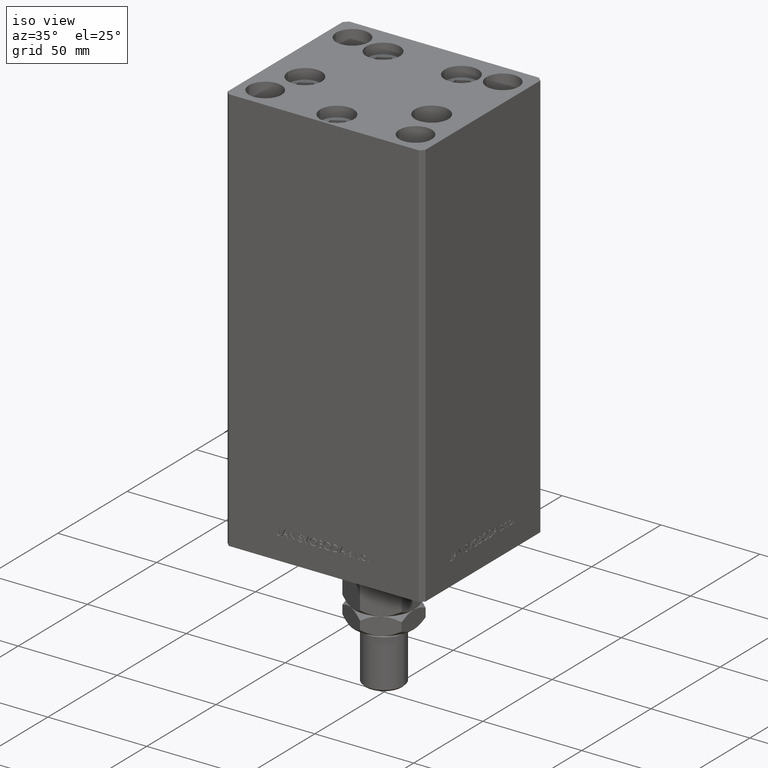
[diagram: clean part render]
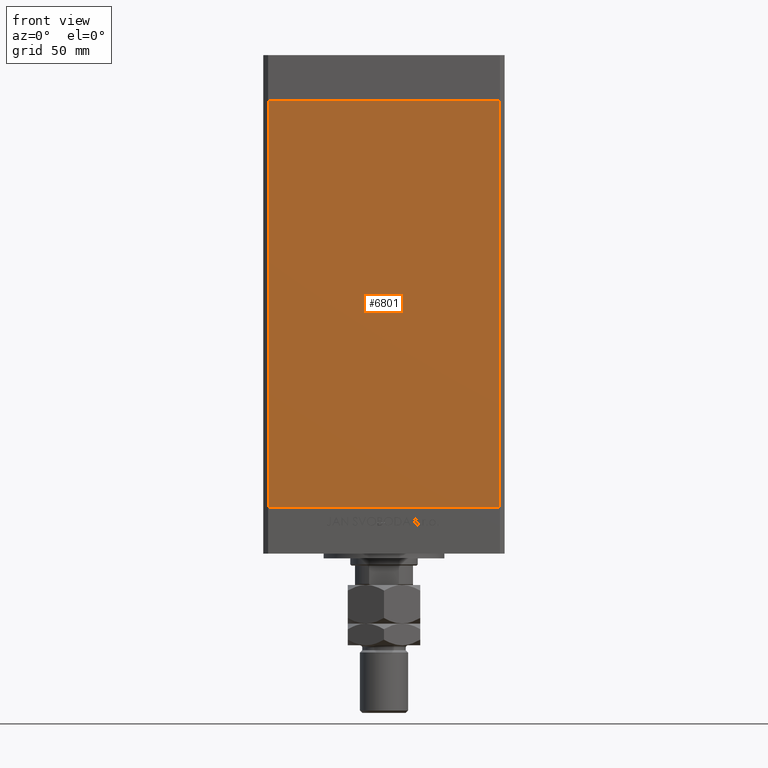
[diagram: tour spotlight — one face highlighted and labeled with its STEP entity id]
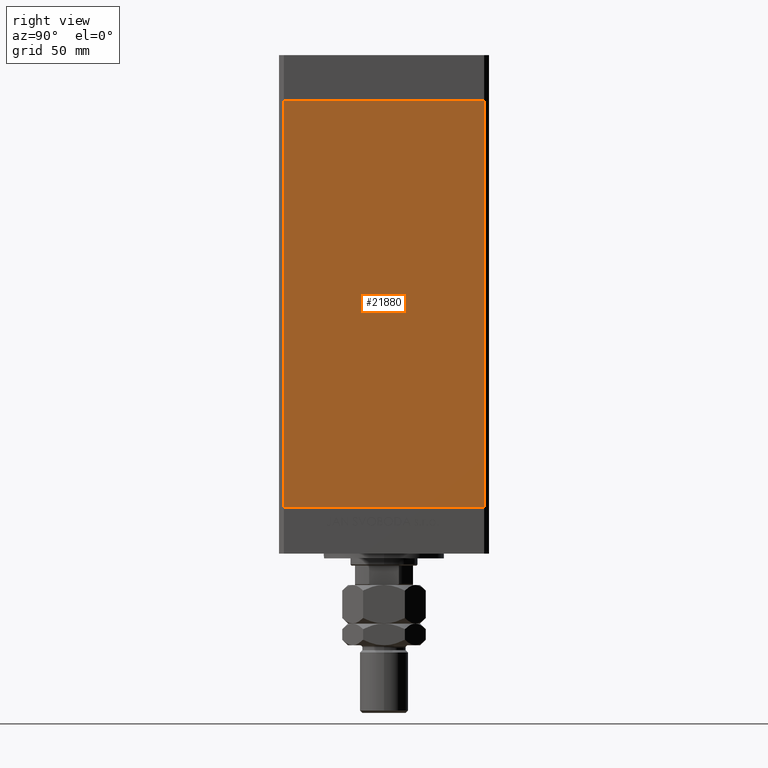
[diagram: tour spotlight — one face highlighted and labeled with its STEP entity id]
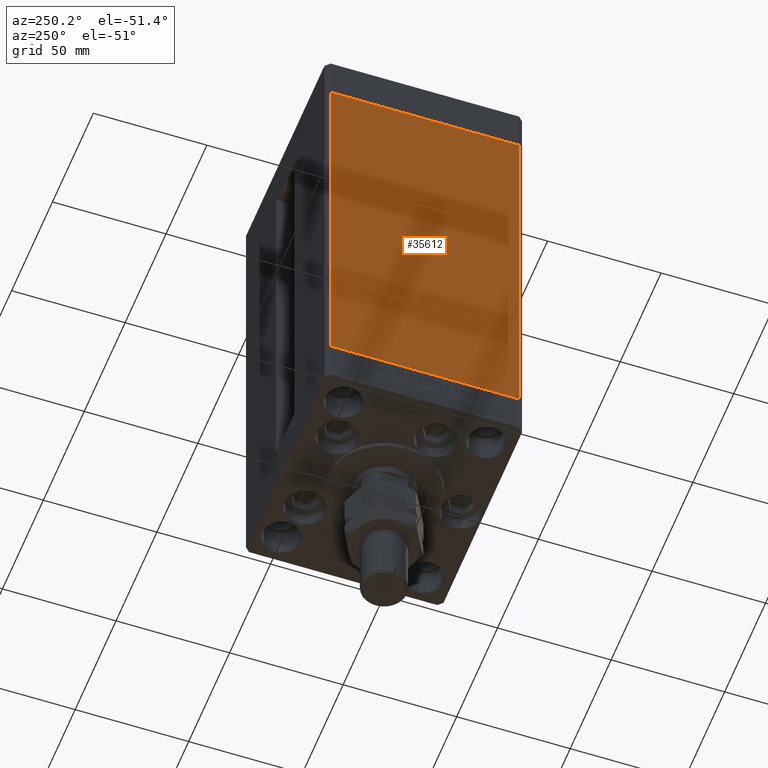
[diagram: tour spotlight — one face highlighted and labeled with its STEP entity id]
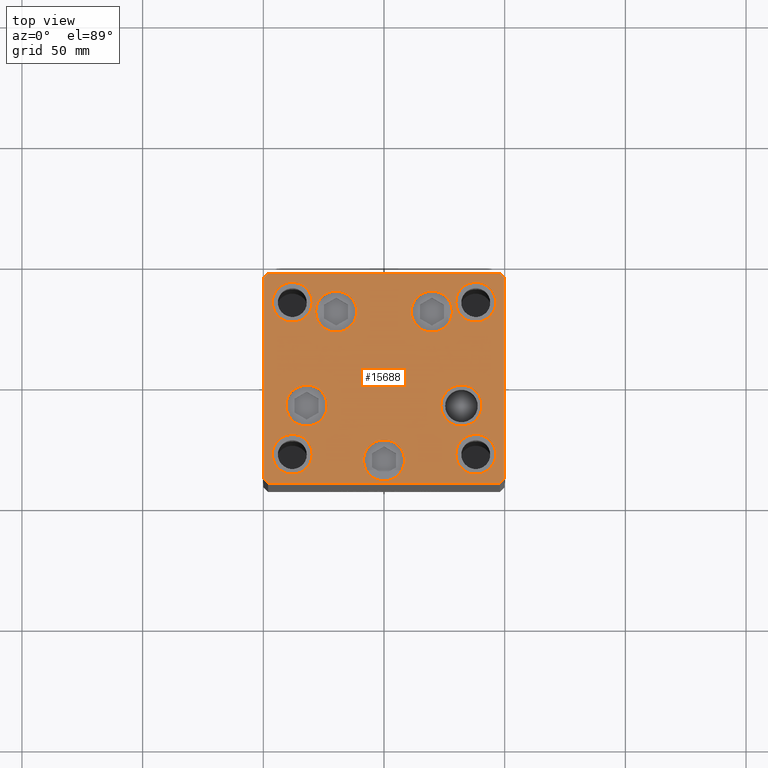
[diagram: tour spotlight — one face highlighted and labeled with its STEP entity id]
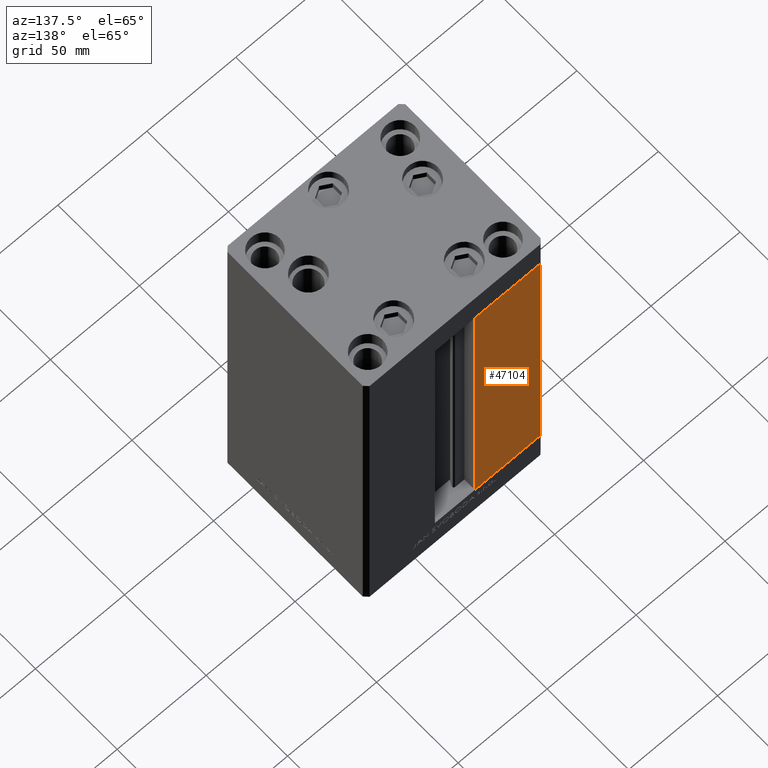
[diagram: tour spotlight — one face highlighted and labeled with its STEP entity id]
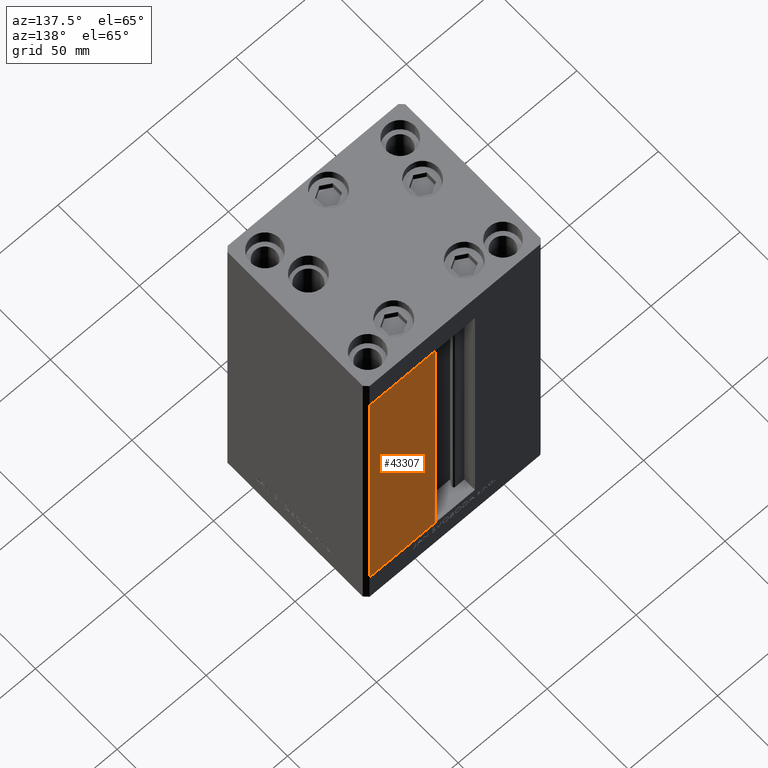
[diagram: tour spotlight — one face highlighted and labeled with its STEP entity id]
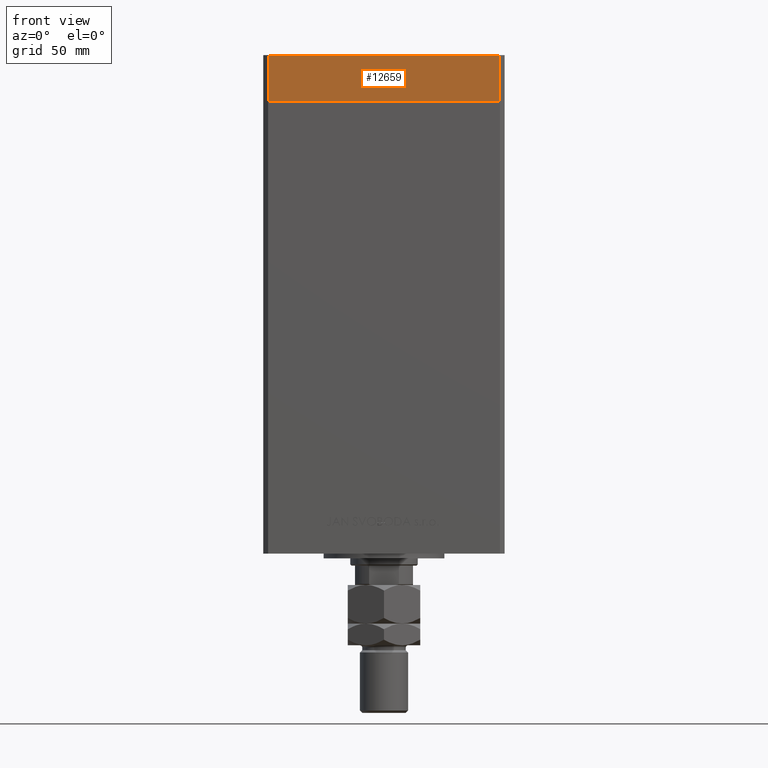
[diagram: tour spotlight — one face highlighted and labeled with its STEP entity id]
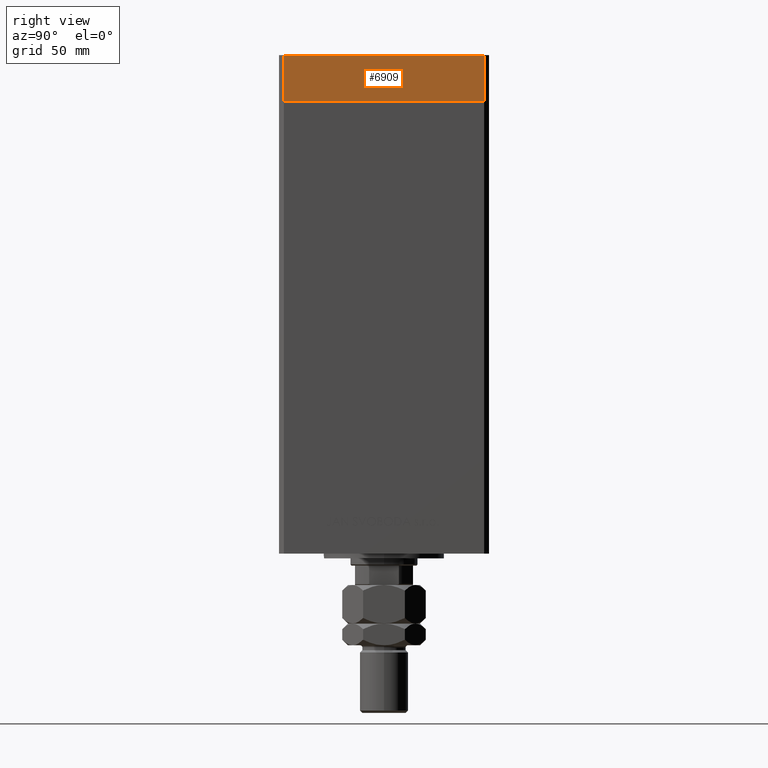
[diagram: tour spotlight — one face highlighted and labeled with its STEP entity id]
A machine part: a face-by-face anatomy tour. The part has 1213 B-rep faces; the first image is the clean iso view, then the 8 largest visible faces are spotlighted one at a time (largest first), each with its STEP entity span.

Face 1 — front view, entity #6801. In plain terms, the highlighted planar face has unit normal (0, 1, 0).
Definition (entity closure, byte-faithful):
#529 = DIRECTION ( 'NONE',  ( -0.000000000000000000, -0.000000000000000000, -1.000000000000000000 ) ) ;
#2316 = VERTEX_POINT ( 'NONE', #23486 ) ;
#3650 = CARTESIAN_POINT ( 'NONE',  ( 47.99999999999998579, -43.50000000000000000, 168.5000000000000000 ) ) ;
#5937 = VECTOR ( 'NONE', #37376, 1000.000000000000000 ) ;
#6801 = ADVANCED_FACE ( 'NONE', ( #41312 ), #50525, .F. ) ;
#7800 = CARTESIAN_POINT ( 'NONE',  ( -47.99999999999998579, -43.50000000000000000, 168.5000000000000000 ) ) ;
#8422 = VERTEX_POINT ( 'NONE', #33880 ) ;
#11172 = VECTOR ( 'NONE', #31427, 1000.000000000000000 ) ;
#12581 = CARTESIAN_POINT ( 'NONE',  ( 47.99999999999998579, -43.50000000000000000, 0.000000000000000000 ) ) ;
#17658 = EDGE_CURVE ( 'NONE', #35842, #23782, #31347, .T. ) ;
#21240 = EDGE_LOOP ( 'NONE', ( #45134, #36177, #46824, #46630 ) ) ;
#22065 = AXIS2_PLACEMENT_3D ( 'NONE', #35112, #30535, #31018 ) ;
#23486 = CARTESIAN_POINT ( 'NONE',  ( -47.99999999999998579, -43.50000000000000000, 168.5000000000000000 ) ) ;
#23782 = VERTEX_POINT ( 'NONE', #12581 ) ;
#24847 = CARTESIAN_POINT ( 'NONE',  ( -47.99999999999998579, -43.50000000000000000, 168.5000000000000000 ) ) ;
#27083 = LINE ( 'NONE', #7800, #11172 ) ;
#30535 = DIRECTION ( 'NONE',  ( 0.000000000000000000, 1.000000000000000000, 0.000000000000000000 ) ) ;
#30543 = VECTOR ( 'NONE', #529, 1000.000000000000000 ) ;
#30609 = LINE ( 'NONE', #46265, #45427 ) ;
#31018 = DIRECTION ( 'NONE',  ( 0.000000000000000000, -0.000000000000000000, 1.000000000000000000 ) ) ;
#31347 = LINE ( 'NONE', #35192, #30543 ) ;
#31427 = DIRECTION ( 'NONE',  ( 1.000000000000000000, 0.000000000000000000, 0.000000000000000000 ) ) ;
#33880 = CARTESIAN_POINT ( 'NONE',  ( -47.99999999999998579, -43.50000000000000000, 0.000000000000000000 ) ) ;
#35112 = CARTESIAN_POINT ( 'NONE',  ( -47.99999999999998579, -43.50000000000000000, 168.5000000000000000 ) ) ;
#35192 = CARTESIAN_POINT ( 'NONE',  ( 47.99999999999998579, -43.50000000000000000, 168.5000000000000000 ) ) ;
#35842 = VERTEX_POINT ( 'NONE', #3650 ) ;
#36177 = ORIENTED_EDGE ( 'NONE', *, *, #17658, .F. ) ;
#37376 = DIRECTION ( 'NONE',  ( -0.000000000000000000, -0.000000000000000000, -1.000000000000000000 ) ) ;
#41245 = LINE ( 'NONE', #24847, #5937 ) ;
#41312 = FACE_OUTER_BOUND ( 'NONE', #21240, .T. ) ;
#42403 = DIRECTION ( 'NONE',  ( 1.000000000000000000, 0.000000000000000000, 0.000000000000000000 ) ) ;
#44222 = EDGE_CURVE ( 'NONE', #8422, #23782, #30609, .T. ) ;
#45134 = ORIENTED_EDGE ( 'NONE', *, *, #44222, .T. ) ;
#45427 = VECTOR ( 'NONE', #42403, 1000.000000000000000 ) ;
#45814 = EDGE_CURVE ( 'NONE', #2316, #35842, #27083, .T. ) ;
#46265 = CARTESIAN_POINT ( 'NONE',  ( -47.99999999999998579, -43.50000000000000000, 0.000000000000000000 ) ) ;
#46630 = ORIENTED_EDGE ( 'NONE', *, *, #50470, .T. ) ;
#46824 = ORIENTED_EDGE ( 'NONE', *, *, #45814, .F. ) ;
#50470 = EDGE_CURVE ( 'NONE', #2316, #8422, #41245, .T. ) ;
#50525 = PLANE ( 'NONE',  #22065 ) ;

Face 2 — right view, entity #21880. In plain terms, the highlighted planar face has unit normal (1, -0, 0).
Definition (entity closure, byte-faithful):
#535 = LINE ( 'NONE', #16963, #19061 ) ;
#977 = DIRECTION ( 'NONE',  ( 3.344045254895050973E-16, 1.000000000000000000, 0.000000000000000000 ) ) ;
#4315 = CARTESIAN_POINT ( 'NONE',  ( 50.00000000000001421, 41.49999999999999289, 168.5000000000000000 ) ) ;
#7964 = DIRECTION ( 'NONE',  ( -0.000000000000000000, -0.000000000000000000, -1.000000000000000000 ) ) ;
#8563 = CARTESIAN_POINT ( 'NONE',  ( 50.00000000000001421, 41.49999999999999289, 0.000000000000000000 ) ) ;
#13656 = CARTESIAN_POINT ( 'NONE',  ( 50.00000000000001421, 41.49999999999999289, 168.5000000000000000 ) ) ;
#13893 = EDGE_CURVE ( 'NONE', #48830, #14490, #48846, .T. ) ;
#14490 = VERTEX_POINT ( 'NONE', #8563 ) ;
#15470 = VERTEX_POINT ( 'NONE', #44717 ) ;
#15500 = ORIENTED_EDGE ( 'NONE', *, *, #35197, .T. ) ;
#16963 = CARTESIAN_POINT ( 'NONE',  ( 50.00000000000001421, 41.49999999999999289, 168.5000000000000000 ) ) ;
#17645 = EDGE_CURVE ( 'NONE', #15470, #29056, #28274, .T. ) ;
#19061 = VECTOR ( 'NONE', #28018, 1000.000000000000000 ) ;
#19067 = VECTOR ( 'NONE', #44990, 1000.000000000000000 ) ;
#19371 = ORIENTED_EDGE ( 'NONE', *, *, #33320, .F. ) ;
#19871 = LINE ( 'NONE', #23469, #27997 ) ;
#20239 = PLANE ( 'NONE',  #42490 ) ;
#21880 = ADVANCED_FACE ( 'NONE', ( #43599 ), #20239, .T. ) ;
#23469 = CARTESIAN_POINT ( 'NONE',  ( 50.00000000000001421, 41.49999999999999289, 0.000000000000000000 ) ) ;
#24825 = ORIENTED_EDGE ( 'NONE', *, *, #17645, .T. ) ;
#26007 = CARTESIAN_POINT ( 'NONE',  ( 49.99999999999998579, -41.49999999999999289, 0.000000000000000000 ) ) ;
#27815 = DIRECTION ( 'NONE',  ( -3.344045254895050973E-16, -1.000000000000000000, 0.000000000000000000 ) ) ;
#27997 = VECTOR ( 'NONE', #27815, 1000.000000000000000 ) ;
#28018 = DIRECTION ( 'NONE',  ( -3.344045254895050973E-16, -1.000000000000000000, 0.000000000000000000 ) ) ;
#28274 = LINE ( 'NONE', #39041, #29714 ) ;
#29056 = VERTEX_POINT ( 'NONE', #26007 ) ;
#29714 = VECTOR ( 'NONE', #7964, 1000.000000000000000 ) ;
#33320 = EDGE_CURVE ( 'NONE', #14490, #29056, #19871, .T. ) ;
#35197 = EDGE_CURVE ( 'NONE', #48830, #15470, #535, .T. ) ;
#35776 = EDGE_LOOP ( 'NONE', ( #19371, #38765, #15500, #24825 ) ) ;
#35891 = DIRECTION ( 'NONE',  ( 1.000000000000000000, -3.344045254895050973E-16, 0.000000000000000000 ) ) ;
#38765 = ORIENTED_EDGE ( 'NONE', *, *, #13893, .F. ) ;
#39041 = CARTESIAN_POINT ( 'NONE',  ( 49.99999999999998579, -41.49999999999999289, 168.5000000000000000 ) ) ;
#42490 = AXIS2_PLACEMENT_3D ( 'NONE', #4315, #35891, #977 ) ;
#43599 = FACE_OUTER_BOUND ( 'NONE', #35776, .T. ) ;
#44717 = CARTESIAN_POINT ( 'NONE',  ( 49.99999999999998579, -41.49999999999999289, 168.5000000000000000 ) ) ;
#44990 = DIRECTION ( 'NONE',  ( -0.000000000000000000, -0.000000000000000000, -1.000000000000000000 ) ) ;
#45534 = CARTESIAN_POINT ( 'NONE',  ( 50.00000000000001421, 41.49999999999999289, 168.5000000000000000 ) ) ;
#48830 = VERTEX_POINT ( 'NONE', #45534 ) ;
#48846 = LINE ( 'NONE', #13656, #19067 ) ;

Face 3 — auxiliary view, entity #35612. In plain terms, the highlighted planar face has unit normal (1, 0, 0).
Definition (entity closure, byte-faithful):
#1394 = LINE ( 'NONE', #20665, #5279 ) ;
#2627 = AXIS2_PLACEMENT_3D ( 'NONE', #16013, #35024, #15764 ) ;
#3228 = VECTOR ( 'NONE', #14682, 1000.000000000000000 ) ;
#4288 = DIRECTION ( 'NONE',  ( -0.000000000000000000, -0.000000000000000000, -1.000000000000000000 ) ) ;
#5279 = VECTOR ( 'NONE', #43250, 1000.000000000000000 ) ;
#7224 = LINE ( 'NONE', #22660, #3228 ) ;
#7308 = ORIENTED_EDGE ( 'NONE', *, *, #40524, .F. ) ;
#10372 = ORIENTED_EDGE ( 'NONE', *, *, #23127, .T. ) ;
#10555 = ORIENTED_EDGE ( 'NONE', *, *, #40869, .T. ) ;
#11958 = VERTEX_POINT ( 'NONE', #22955 ) ;
#14682 = DIRECTION ( 'NONE',  ( 3.344045254895050973E-16, -1.000000000000000000, 0.000000000000000000 ) ) ;
#15764 = DIRECTION ( 'NONE',  ( -3.344045254895050973E-16, 1.000000000000000000, 0.000000000000000000 ) ) ;
#15803 = DIRECTION ( 'NONE',  ( -0.000000000000000000, -0.000000000000000000, -1.000000000000000000 ) ) ;
#16013 = CARTESIAN_POINT ( 'NONE',  ( -50.00000000000001421, 41.49999999999999289, 168.5000000000000000 ) ) ;
#16341 = CARTESIAN_POINT ( 'NONE',  ( -49.99999999999998579, -41.49999999999999289, 168.5000000000000000 ) ) ;
#19132 = FACE_OUTER_BOUND ( 'NONE', #29536, .T. ) ;
#20665 = CARTESIAN_POINT ( 'NONE',  ( -50.00000000000001421, 41.49999999999999289, 0.000000000000000000 ) ) ;
#22660 = CARTESIAN_POINT ( 'NONE',  ( -50.00000000000001421, 41.49999999999999289, 168.5000000000000000 ) ) ;
#22955 = CARTESIAN_POINT ( 'NONE',  ( -50.00000000000001421, 41.49999999999999289, 168.5000000000000000 ) ) ;
#23127 = EDGE_CURVE ( 'NONE', #11958, #43761, #36077, .T. ) ;
#24120 = VECTOR ( 'NONE', #4288, 1000.000000000000000 ) ;
#24295 = CARTESIAN_POINT ( 'NONE',  ( -50.00000000000001421, 41.49999999999999289, 168.5000000000000000 ) ) ;
#24506 = EDGE_CURVE ( 'NONE', #11958, #25823, #7224, .T. ) ;
#25823 = VERTEX_POINT ( 'NONE', #45870 ) ;
#26602 = ORIENTED_EDGE ( 'NONE', *, *, #24506, .F. ) ;
#29536 = EDGE_LOOP ( 'NONE', ( #10555, #7308, #26602, #10372 ) ) ;
#35024 = DIRECTION ( 'NONE',  ( 1.000000000000000000, 3.344045254895050973E-16, -0.000000000000000000 ) ) ;
#35612 = ADVANCED_FACE ( 'NONE', ( #19132 ), #43488, .F. ) ;
#35880 = CARTESIAN_POINT ( 'NONE',  ( -50.00000000000001421, 41.49999999999999289, 0.000000000000000000 ) ) ;
#36077 = LINE ( 'NONE', #24295, #49073 ) ;
#38350 = VERTEX_POINT ( 'NONE', #47474 ) ;
#40524 = EDGE_CURVE ( 'NONE', #25823, #38350, #47940, .T. ) ;
#40869 = EDGE_CURVE ( 'NONE', #43761, #38350, #1394, .T. ) ;
#43250 = DIRECTION ( 'NONE',  ( 3.344045254895050973E-16, -1.000000000000000000, 0.000000000000000000 ) ) ;
#43488 = PLANE ( 'NONE',  #2627 ) ;
#43761 = VERTEX_POINT ( 'NONE', #35880 ) ;
#45870 = CARTESIAN_POINT ( 'NONE',  ( -49.99999999999998579, -41.49999999999999289, 168.5000000000000000 ) ) ;
#47474 = CARTESIAN_POINT ( 'NONE',  ( -49.99999999999998579, -41.49999999999999289, 0.000000000000000000 ) ) ;
#47940 = LINE ( 'NONE', #16341, #24120 ) ;
#49073 = VECTOR ( 'NONE', #15803, 1000.000000000000000 ) ;

Face 4 — top view, entity #15688. In plain terms, the highlighted planar face has unit normal (0, 0, 1).
Definition (entity closure, byte-faithful):
#46 = DIRECTION ( 'NONE',  ( -1.003213576468515193E-15, 1.000000000000000000, 0.000000000000000000 ) ) ;
#69 = EDGE_CURVE ( 'NONE', #17532, #7240, #39985, .T. ) ;
#386 = DIRECTION ( 'NONE',  ( 1.000000000000000000, 0.000000000000000000, 0.000000000000000000 ) ) ;
#493 = DIRECTION ( 'NONE',  ( -0.000000000000000000, 0.000000000000000000, 1.000000000000000000 ) ) ;
#715 = EDGE_CURVE ( 'NONE', #7240, #17532, #22816, .T. ) ;
#754 = FACE_BOUND ( 'NONE', #46035, .T. ) ;
#945 = DIRECTION ( 'NONE',  ( 0.000000000000000000, 0.000000000000000000, 1.000000000000000000 ) ) ;
#1121 = ORIENTED_EDGE ( 'NONE', *, *, #9019, .T. ) ;
#1205 = CARTESIAN_POINT ( 'NONE',  ( 38.00000000000000000, 31.49999999999999289, 0.000000000000000000 ) ) ;
#1265 = FACE_BOUND ( 'NONE', #44246, .T. ) ;
#1752 = AXIS2_PLACEMENT_3D ( 'NONE', #9958, #41297, #6121 ) ;
#1958 = DIRECTION ( 'NONE',  ( 1.000000000000000000, 0.000000000000000000, 0.000000000000000000 ) ) ;
#2048 = CARTESIAN_POINT ( 'NONE',  ( 47.99999999999999289, -43.50000000000001421, 0.000000000000000000 ) ) ;
#2300 = CIRCLE ( 'NONE', #21195, 8.250000000000000000 ) ;
#3061 = VERTEX_POINT ( 'NONE', #20725 ) ;
#3112 = CIRCLE ( 'NONE', #7172, 8.499999999999992895 ) ;
#3163 = DIRECTION ( 'NONE',  ( 0.7071067811865474617, -0.7071067811865474617, 0.000000000000000000 ) ) ;
#3222 = VERTEX_POINT ( 'NONE', #38641 ) ;
#3301 = CIRCLE ( 'NONE', #50823, 8.500000000000000000 ) ;
#3404 = ORIENTED_EDGE ( 'NONE', *, *, #21655, .T. ) ;
#3421 = CARTESIAN_POINT ( 'NONE',  ( -29.74999999999999289, -31.50000000000000000, 0.000000000000000000 ) ) ;
#3546 = CARTESIAN_POINT ( 'NONE',  ( 47.99999999999990763, 43.50000000000000000, 0.000000000000000000 ) ) ;
#3696 = EDGE_LOOP ( 'NONE', ( #37921, #50146 ) ) ;
#3790 = EDGE_CURVE ( 'NONE', #40538, #31033, #3112, .T. ) ;
#4698 = CARTESIAN_POINT ( 'NONE',  ( -37.99999999999999289, -31.50000000000000000, 0.000000000000000000 ) ) ;
#4771 = CARTESIAN_POINT ( 'NONE',  ( -40.55550741379015278, -11.33333333333333925, 0.000000000000000000 ) ) ;
#4801 = VERTEX_POINT ( 'NONE', #20280 ) ;
#4966 = EDGE_CURVE ( 'NONE', #29461, #3061, #2300, .T. ) ;
#5119 = FACE_BOUND ( 'NONE', #25212, .T. ) ;
#5185 = VERTEX_POINT ( 'NONE', #9419 ) ;
#6121 = DIRECTION ( 'NONE',  ( 1.000000000000000000, 0.000000000000000000, 0.000000000000000000 ) ) ;
#6332 = EDGE_CURVE ( 'NONE', #22557, #35600, #15975, .T. ) ;
#6381 = DIRECTION ( 'NONE',  ( 0.000000000000000000, -0.000000000000000000, -1.000000000000000000 ) ) ;
#6582 = DIRECTION ( 'NONE',  ( 0.000000000000000000, 0.000000000000000000, 1.000000000000000000 ) ) ;
#7142 = CARTESIAN_POINT ( 'NONE',  ( 47.99999999999990763, 43.50000000000000000, 0.000000000000000000 ) ) ;
#7172 = AXIS2_PLACEMENT_3D ( 'NONE', #44716, #21350, #17735 ) ;
#7185 = FACE_BOUND ( 'NONE', #3696, .T. ) ;
#7240 = VERTEX_POINT ( 'NONE', #35440 ) ;
#7395 = CARTESIAN_POINT ( 'NONE',  ( -11.32068048781373726, 27.62499999999999645, 0.000000000000000000 ) ) ;
#7956 = CARTESIAN_POINT ( 'NONE',  ( -48.00000000000000711, 43.49999999999996447, 0.000000000000000000 ) ) ;
#8122 = EDGE_CURVE ( 'NONE', #46875, #36414, #8216, .T. ) ;
#8216 = LINE ( 'NONE', #7956, #13070 ) ;
#8862 = AXIS2_PLACEMENT_3D ( 'NONE', #11207, #14560, #10701 ) ;
#9019 = EDGE_CURVE ( 'NONE', #17738, #9133, #44283, .T. ) ;
#9075 = VERTEX_POINT ( 'NONE', #7142 ) ;
#9133 = VERTEX_POINT ( 'NONE', #7395 ) ;
#9152 = CIRCLE ( 'NONE', #15702, 8.500000000000000000 ) ;
#9161 = AXIS2_PLACEMENT_3D ( 'NONE', #13400, #18010, #40886 ) ;
#9260 = AXIS2_PLACEMENT_3D ( 'NONE', #18680, #14834, #26661 ) ;
#9419 = CARTESIAN_POINT ( 'NONE',  ( -50.00000000000000000, -41.50000000000000000, 0.000000000000000000 ) ) ;
#9558 = CARTESIAN_POINT ( 'NONE',  ( 46.25000000000000000, 31.49999999999999289, 0.000000000000000000 ) ) ;
#9795 = DIRECTION ( 'NONE',  ( 1.000000000000000000, 0.000000000000000000, 0.000000000000000000 ) ) ;
#9808 = EDGE_CURVE ( 'NONE', #3061, #29461, #36928, .T. ) ;
#9887 = DIRECTION ( 'NONE',  ( 1.000000000000000000, 0.000000000000000000, 0.000000000000000000 ) ) ;
#9958 = CARTESIAN_POINT ( 'NONE',  ( -38.00000000000000000, 31.50000000000000000, 0.000000000000000000 ) ) ;
#10022 = CIRCLE ( 'NONE', #11669, 8.250000000000000000 ) ;
#10097 = DIRECTION ( 'NONE',  ( 1.000000000000000000, 0.000000000000000000, 0.000000000000000000 ) ) ;
#10468 = AXIS2_PLACEMENT_3D ( 'NONE', #1205, #945, #1958 ) ;
#10616 = DIRECTION ( 'NONE',  ( -0.7071067811865463515, -0.7071067811865487940, 0.000000000000000000 ) ) ;
#10701 = DIRECTION ( 'NONE',  ( 1.000000000000000000, 0.000000000000000000, 0.000000000000000000 ) ) ;
#11061 = CIRCLE ( 'NONE', #33198, 8.500000000000000000 ) ;
#11207 = CARTESIAN_POINT ( 'NONE',  ( 38.00000000000000000, 31.49999999999999289, 0.000000000000000000 ) ) ;
#11321 = ORIENTED_EDGE ( 'NONE', *, *, #38814, .T. ) ;
#11447 = VERTEX_POINT ( 'NONE', #17125 ) ;
#11597 = CIRCLE ( 'NONE', #9161, 8.500000000000000000 ) ;
#11669 = AXIS2_PLACEMENT_3D ( 'NONE', #4698, #48345, #47314 ) ;
#11814 = EDGE_LOOP ( 'NONE', ( #23242, #13129 ) ) ;
#12011 = ORIENTED_EDGE ( 'NONE', *, *, #40827, .F. ) ;
#12018 = ORIENTED_EDGE ( 'NONE', *, *, #29778, .F. ) ;
#12237 = CARTESIAN_POINT ( 'NONE',  ( 23.55550741379015633, -11.33333333333333037, 0.000000000000000000 ) ) ;
#12457 = CARTESIAN_POINT ( 'NONE',  ( 4.163799117101000559E-15, -34.00000000000000000, 0.000000000000000000 ) ) ;
#12582 = ORIENTED_EDGE ( 'NONE', *, *, #50223, .T. ) ;
#12633 = ORIENTED_EDGE ( 'NONE', *, *, #16905, .T. ) ;
#12693 = DIRECTION ( 'NONE',  ( 0.000000000000000000, -0.000000000000000000, -1.000000000000000000 ) ) ;
#13070 = VECTOR ( 'NONE', #10616, 1000.000000000000000 ) ;
#13129 = ORIENTED_EDGE ( 'NONE', *, *, #4966, .F. ) ;
#13184 = ORIENTED_EDGE ( 'NONE', *, *, #3790, .T. ) ;
#13255 = CARTESIAN_POINT ( 'NONE',  ( -29.75000000000000000, 31.50000000000000000, 0.000000000000000000 ) ) ;
#13400 = CARTESIAN_POINT ( 'NONE',  ( 19.82068048781373193, 27.62500000000000000, 0.000000000000000000 ) ) ;
#13595 = CARTESIAN_POINT ( 'NONE',  ( -46.24999999999999289, -31.50000000000000000, 0.000000000000000000 ) ) ;
#13790 = EDGE_CURVE ( 'NONE', #49950, #30186, #10022, .T. ) ;
#13980 = VERTEX_POINT ( 'NONE', #34954 ) ;
#13996 = ORIENTED_EDGE ( 'NONE', *, *, #13790, .F. ) ;
#14292 = DIRECTION ( 'NONE',  ( 1.000000000000000000, 0.000000000000000000, 0.000000000000000000 ) ) ;
#14363 = CARTESIAN_POINT ( 'NONE',  ( -23.55550741379015278, -11.33333333333333748, 0.000000000000000000 ) ) ;
#14560 = DIRECTION ( 'NONE',  ( 0.000000000000000000, 0.000000000000000000, 1.000000000000000000 ) ) ;
#14834 = DIRECTION ( 'NONE',  ( 0.000000000000000000, -0.000000000000000000, -1.000000000000000000 ) ) ;
#15512 = CARTESIAN_POINT ( 'NONE',  ( 47.99999999999999289, -43.50000000000001421, 0.000000000000000000 ) ) ;
#15688 = ADVANCED_FACE ( 'NONE', ( #42377, #7185, #22875, #1265, #754, #16672, #36433, #32339, #5119, #28735 ), #35670, .T. ) ;
#15702 = AXIS2_PLACEMENT_3D ( 'NONE', #32935, #24734, #9795 ) ;
#15769 = VERTEX_POINT ( 'NONE', #29741 ) ;
#15975 = LINE ( 'NONE', #27039, #46643 ) ;
#16141 = VERTEX_POINT ( 'NONE', #13255 ) ;
#16145 = DIRECTION ( 'NONE',  ( 1.000000000000000000, 0.000000000000000000, 0.000000000000000000 ) ) ;
#16672 = FACE_BOUND ( 'NONE', #11814, .T. ) ;
#16868 = CARTESIAN_POINT ( 'NONE',  ( 40.55550741379014568, -11.33333333333332860, 0.000000000000000000 ) ) ;
#16905 = EDGE_CURVE ( 'NONE', #17965, #26827, #9152, .T. ) ;
#17051 = LINE ( 'NONE', #3546, #43458 ) ;
#17102 = LINE ( 'NONE', #35849, #19743 ) ;
#17125 = CARTESIAN_POINT ( 'NONE',  ( 50.00000000000000000, -41.49999999999999289, 0.000000000000000000 ) ) ;
#17532 = VERTEX_POINT ( 'NONE', #9558 ) ;
#17699 = CARTESIAN_POINT ( 'NONE',  ( -19.82068048781373903, 27.62499999999999645, 0.000000000000000000 ) ) ;
#17735 = DIRECTION ( 'NONE',  ( 1.000000000000000000, 0.000000000000000000, 0.000000000000000000 ) ) ;
#17738 = VERTEX_POINT ( 'NONE', #39298 ) ;
#17965 = VERTEX_POINT ( 'NONE', #14363 ) ;
#18010 = DIRECTION ( 'NONE',  ( 0.000000000000000000, -0.000000000000000000, -1.000000000000000000 ) ) ;
#18532 = ORIENTED_EDGE ( 'NONE', *, *, #28640, .T. ) ;
#18680 = CARTESIAN_POINT ( 'NONE',  ( 32.05550741379015278, -11.33333333333333037, 0.000000000000000000 ) ) ;
#18899 = ORIENTED_EDGE ( 'NONE', *, *, #26735, .T. ) ;
#19314 = EDGE_CURVE ( 'NONE', #11447, #15769, #47032, .T. ) ;
#19552 = DIRECTION ( 'NONE',  ( 1.000000000000000000, 0.000000000000000000, 0.000000000000000000 ) ) ;
#19743 = VECTOR ( 'NONE', #24062, 1000.000000000000114 ) ;
#19869 = AXIS2_PLACEMENT_3D ( 'NONE', #32785, #40738, #43831 ) ;
#20188 = DIRECTION ( 'NONE',  ( 1.000000000000000000, 0.000000000000000000, 0.000000000000000000 ) ) ;
#20280 = CARTESIAN_POINT ( 'NONE',  ( 28.32068048781373193, 27.62500000000000000, 0.000000000000000000 ) ) ;
#20725 = CARTESIAN_POINT ( 'NONE',  ( 46.25000000000000000, -31.49999999999999289, 0.000000000000000000 ) ) ;
#21195 = AXIS2_PLACEMENT_3D ( 'NONE', #45913, #22044, #41544 ) ;
#21350 = DIRECTION ( 'NONE',  ( 0.000000000000000000, -0.000000000000000000, -1.000000000000000000 ) ) ;
#21655 = EDGE_CURVE ( 'NONE', #35600, #11447, #34129, .T. ) ;
#21680 = CARTESIAN_POINT ( 'NONE',  ( -32.05550741379015278, -11.33333333333333925, 0.000000000000000000 ) ) ;
#22044 = DIRECTION ( 'NONE',  ( 0.000000000000000000, 0.000000000000000000, 1.000000000000000000 ) ) ;
#22557 = VERTEX_POINT ( 'NONE', #43140 ) ;
#22816 = CIRCLE ( 'NONE', #8862, 8.250000000000000000 ) ;
#22875 = FACE_BOUND ( 'NONE', #30805, .T. ) ;
#22876 = CARTESIAN_POINT ( 'NONE',  ( 29.74999999999999645, -31.49999999999999289, 0.000000000000000000 ) ) ;
#23201 = CARTESIAN_POINT ( 'NONE',  ( 50.00000000000000000, -41.49999999999999289, 0.000000000000000000 ) ) ;
#23242 = ORIENTED_EDGE ( 'NONE', *, *, #9808, .F. ) ;
#23433 = ORIENTED_EDGE ( 'NONE', *, *, #37394, .T. ) ;
#23533 = VECTOR ( 'NONE', #46, 1000.000000000000000 ) ;
#23696 = DIRECTION ( 'NONE',  ( 1.000000000000000000, 0.000000000000000000, 0.000000000000000000 ) ) ;
#24062 = DIRECTION ( 'NONE',  ( -0.7071067811865474617, 0.7071067811865474617, 0.000000000000000000 ) ) ;
#24522 = DIRECTION ( 'NONE',  ( 1.000000000000000000, 0.000000000000000000, 0.000000000000000000 ) ) ;
#24734 = DIRECTION ( 'NONE',  ( 0.000000000000000000, -0.000000000000000000, -1.000000000000000000 ) ) ;
#25212 = EDGE_LOOP ( 'NONE', ( #37845, #30036 ) ) ;
#25233 = VECTOR ( 'NONE', #30025, 1000.000000000000000 ) ;
#25326 = LINE ( 'NONE', #37864, #36969 ) ;
#25491 = ORIENTED_EDGE ( 'NONE', *, *, #19314, .T. ) ;
#25824 = DIRECTION ( 'NONE',  ( 0.000000000000000000, -0.000000000000000000, -1.000000000000000000 ) ) ;
#26373 = CARTESIAN_POINT ( 'NONE',  ( 38.00000000000000000, -31.49999999999999289, 0.000000000000000000 ) ) ;
#26541 = CARTESIAN_POINT ( 'NONE',  ( -48.00000000000000711, 43.49999999999996447, 0.000000000000000000 ) ) ;
#26550 = LINE ( 'NONE', #42201, #27333 ) ;
#26661 = DIRECTION ( 'NONE',  ( 1.000000000000000000, 0.000000000000000000, 0.000000000000000000 ) ) ;
#26735 = EDGE_CURVE ( 'NONE', #42892, #28787, #3301, .T. ) ;
#26777 = ORIENTED_EDGE ( 'NONE', *, *, #8122, .T. ) ;
#26827 = VERTEX_POINT ( 'NONE', #4771 ) ;
#27039 = CARTESIAN_POINT ( 'NONE',  ( -47.99999999999999289, -43.50000000000001421, 0.000000000000000000 ) ) ;
#27317 = EDGE_LOOP ( 'NONE', ( #1121, #12582 ) ) ;
#27333 = VECTOR ( 'NONE', #3163, 1000.000000000000114 ) ;
#28113 = CIRCLE ( 'NONE', #9260, 8.499999999999992895 ) ;
#28640 = EDGE_CURVE ( 'NONE', #15769, #9075, #17102, .T. ) ;
#28733 = EDGE_CURVE ( 'NONE', #28787, #42892, #48459, .T. ) ;
#28735 = FACE_OUTER_BOUND ( 'NONE', #36237, .T. ) ;
#28787 = VERTEX_POINT ( 'NONE', #44826 ) ;
#28799 = EDGE_CURVE ( 'NONE', #36414, #5185, #25326, .T. ) ;
#29372 = CARTESIAN_POINT ( 'NONE',  ( -8.499999999999996447, -34.00000000000000000, 0.000000000000000000 ) ) ;
#29461 = VERTEX_POINT ( 'NONE', #22876 ) ;
#29741 = CARTESIAN_POINT ( 'NONE',  ( 49.99999999999992184, 41.49999999999998579, 0.000000000000000000 ) ) ;
#29778 = EDGE_CURVE ( 'NONE', #16141, #13980, #32920, .T. ) ;
#30025 = DIRECTION ( 'NONE',  ( 0.7071067811865463515, 0.7071067811865487940, 0.000000000000000000 ) ) ;
#30036 = ORIENTED_EDGE ( 'NONE', *, *, #715, .F. ) ;
#30099 = EDGE_CURVE ( 'NONE', #9075, #46875, #17051, .T. ) ;
#30186 = VERTEX_POINT ( 'NONE', #3421 ) ;
#30275 = DIRECTION ( 'NONE',  ( 1.000000000000000000, 0.000000000000000000, 0.000000000000000000 ) ) ;
#30805 = EDGE_LOOP ( 'NONE', ( #23433, #13184 ) ) ;
#31033 = VERTEX_POINT ( 'NONE', #12237 ) ;
#31986 = DIRECTION ( 'NONE',  ( 0.000000000000000000, -0.000000000000000000, -1.000000000000000000 ) ) ;
#32026 = AXIS2_PLACEMENT_3D ( 'NONE', #26373, #6582, #14292 ) ;
#32339 = FACE_BOUND ( 'NONE', #44734, .T. ) ;
#32359 = AXIS2_PLACEMENT_3D ( 'NONE', #46755, #39570, #19552 ) ;
#32481 = CARTESIAN_POINT ( 'NONE',  ( 19.82068048781373193, 27.62500000000000000, 0.000000000000000000 ) ) ;
#32785 = CARTESIAN_POINT ( 'NONE',  ( -19.82068048781373903, 27.62499999999999645, 0.000000000000000000 ) ) ;
#32920 = CIRCLE ( 'NONE', #1752, 8.250000000000000000 ) ;
#32935 = CARTESIAN_POINT ( 'NONE',  ( -32.05550741379015278, -11.33333333333333925, 0.000000000000000000 ) ) ;
#33032 = DIRECTION ( 'NONE',  ( 8.360113137237628665E-17, -1.000000000000000000, 0.000000000000000000 ) ) ;
#33198 = AXIS2_PLACEMENT_3D ( 'NONE', #21680, #37319, #10097 ) ;
#33891 = ORIENTED_EDGE ( 'NONE', *, *, #41876, .T. ) ;
#34129 = LINE ( 'NONE', #2048, #25233 ) ;
#34811 = AXIS2_PLACEMENT_3D ( 'NONE', #35556, #47098, #24522 ) ;
#34954 = CARTESIAN_POINT ( 'NONE',  ( -46.25000000000000000, 31.50000000000000000, 0.000000000000000000 ) ) ;
#35440 = CARTESIAN_POINT ( 'NONE',  ( 29.74999999999999645, 31.49999999999999289, 0.000000000000000000 ) ) ;
#35556 = CARTESIAN_POINT ( 'NONE',  ( -37.99999999999999289, -31.50000000000000000, 0.000000000000000000 ) ) ;
#35600 = VERTEX_POINT ( 'NONE', #15512 ) ;
#35670 = PLANE ( 'NONE',  #47669 ) ;
#35849 = CARTESIAN_POINT ( 'NONE',  ( 49.99999999999992184, 41.49999999999998579, 0.000000000000000000 ) ) ;
#36237 = EDGE_LOOP ( 'NONE', ( #11321, #49640, #3404, #25491, #18532, #42314, #26777, #46028 ) ) ;
#36414 = VERTEX_POINT ( 'NONE', #40273 ) ;
#36433 = FACE_BOUND ( 'NONE', #49069, .T. ) ;
#36928 = CIRCLE ( 'NONE', #32026, 8.250000000000000000 ) ;
#36969 = VECTOR ( 'NONE', #33032, 1000.000000000000000 ) ;
#37124 = CARTESIAN_POINT ( 'NONE',  ( 4.163799117101000559E-15, -34.00000000000000000, 0.000000000000000000 ) ) ;
#37263 = CIRCLE ( 'NONE', #34811, 8.250000000000000000 ) ;
#37319 = DIRECTION ( 'NONE',  ( 0.000000000000000000, -0.000000000000000000, -1.000000000000000000 ) ) ;
#37394 = EDGE_CURVE ( 'NONE', #31033, #40538, #28113, .T. ) ;
#37845 = ORIENTED_EDGE ( 'NONE', *, *, #69, .F. ) ;
#37864 = CARTESIAN_POINT ( 'NONE',  ( -50.00000000000000711, 41.49999999999995026, 0.000000000000000000 ) ) ;
#37921 = ORIENTED_EDGE ( 'NONE', *, *, #41776, .T. ) ;
#38555 = ORIENTED_EDGE ( 'NONE', *, *, #28733, .T. ) ;
#38641 = CARTESIAN_POINT ( 'NONE',  ( 11.32068048781373015, 27.62500000000000000, 0.000000000000000000 ) ) ;
#38814 = EDGE_CURVE ( 'NONE', #5185, #22557, #26550, .T. ) ;
#39298 = CARTESIAN_POINT ( 'NONE',  ( -28.32068048781373903, 27.62499999999999645, 0.000000000000000000 ) ) ;
#39421 = AXIS2_PLACEMENT_3D ( 'NONE', #37124, #25824, #9887 ) ;
#39570 = DIRECTION ( 'NONE',  ( 0.000000000000000000, 0.000000000000000000, 1.000000000000000000 ) ) ;
#39751 = AXIS2_PLACEMENT_3D ( 'NONE', #32481, #12693, #386 ) ;
#39985 = CIRCLE ( 'NONE', #10468, 8.250000000000000000 ) ;
#40273 = CARTESIAN_POINT ( 'NONE',  ( -50.00000000000000711, 41.49999999999995026, 0.000000000000000000 ) ) ;
#40538 = VERTEX_POINT ( 'NONE', #16868 ) ;
#40550 = CARTESIAN_POINT ( 'NONE',  ( 0.000000000000000000, 0.000000000000000000, 0.000000000000000000 ) ) ;
#40738 = DIRECTION ( 'NONE',  ( 0.000000000000000000, -0.000000000000000000, -1.000000000000000000 ) ) ;
#40827 = EDGE_CURVE ( 'NONE', #30186, #49950, #37263, .T. ) ;
#40886 = DIRECTION ( 'NONE',  ( 1.000000000000000000, 0.000000000000000000, 0.000000000000000000 ) ) ;
#41297 = DIRECTION ( 'NONE',  ( 0.000000000000000000, 0.000000000000000000, 1.000000000000000000 ) ) ;
#41544 = DIRECTION ( 'NONE',  ( 1.000000000000000000, 0.000000000000000000, 0.000000000000000000 ) ) ;
#41776 = EDGE_CURVE ( 'NONE', #3222, #4801, #43863, .T. ) ;
#41876 = EDGE_CURVE ( 'NONE', #26827, #17965, #11061, .T. ) ;
#42201 = CARTESIAN_POINT ( 'NONE',  ( -50.00000000000000000, -41.50000000000000000, 0.000000000000000000 ) ) ;
#42314 = ORIENTED_EDGE ( 'NONE', *, *, #30099, .T. ) ;
#42377 = FACE_BOUND ( 'NONE', #27317, .T. ) ;
#42892 = VERTEX_POINT ( 'NONE', #29372 ) ;
#43140 = CARTESIAN_POINT ( 'NONE',  ( -47.99999999999999289, -43.50000000000001421, 0.000000000000000000 ) ) ;
#43458 = VECTOR ( 'NONE', #47349, 1000.000000000000000 ) ;
#43462 = AXIS2_PLACEMENT_3D ( 'NONE', #17699, #6381, #30275 ) ;
#43655 = CIRCLE ( 'NONE', #19869, 8.500000000000000000 ) ;
#43831 = DIRECTION ( 'NONE',  ( 1.000000000000000000, 0.000000000000000000, 0.000000000000000000 ) ) ;
#43863 = CIRCLE ( 'NONE', #39751, 8.500000000000000000 ) ;
#44246 = EDGE_LOOP ( 'NONE', ( #18899, #38555 ) ) ;
#44283 = CIRCLE ( 'NONE', #43462, 8.500000000000000000 ) ;
#44716 = CARTESIAN_POINT ( 'NONE',  ( 32.05550741379015278, -11.33333333333333037, 0.000000000000000000 ) ) ;
#44734 = EDGE_LOOP ( 'NONE', ( #12018, #49799 ) ) ;
#44826 = CARTESIAN_POINT ( 'NONE',  ( 8.500000000000003553, -34.00000000000000000, 0.000000000000000000 ) ) ;
#45254 = EDGE_CURVE ( 'NONE', #13980, #16141, #46321, .T. ) ;
#45913 = CARTESIAN_POINT ( 'NONE',  ( 38.00000000000000000, -31.49999999999999289, 0.000000000000000000 ) ) ;
#46028 = ORIENTED_EDGE ( 'NONE', *, *, #28799, .T. ) ;
#46035 = EDGE_LOOP ( 'NONE', ( #33891, #12633 ) ) ;
#46321 = CIRCLE ( 'NONE', #32359, 8.250000000000000000 ) ;
#46643 = VECTOR ( 'NONE', #23696, 1000.000000000000000 ) ;
#46755 = CARTESIAN_POINT ( 'NONE',  ( -38.00000000000000000, 31.50000000000000000, 0.000000000000000000 ) ) ;
#46875 = VERTEX_POINT ( 'NONE', #26541 ) ;
#47032 = LINE ( 'NONE', #23201, #23533 ) ;
#47098 = DIRECTION ( 'NONE',  ( 0.000000000000000000, 0.000000000000000000, 1.000000000000000000 ) ) ;
#47314 = DIRECTION ( 'NONE',  ( 1.000000000000000000, 0.000000000000000000, 0.000000000000000000 ) ) ;
#47349 = DIRECTION ( 'NONE',  ( -1.000000000000000000, -3.614007241618350743E-16, 0.000000000000000000 ) ) ;
#47669 = AXIS2_PLACEMENT_3D ( 'NONE', #40550, #493, #16145 ) ;
#48345 = DIRECTION ( 'NONE',  ( 0.000000000000000000, 0.000000000000000000, 1.000000000000000000 ) ) ;
#48459 = CIRCLE ( 'NONE', #39421, 8.500000000000000000 ) ;
#49069 = EDGE_LOOP ( 'NONE', ( #12011, #13996 ) ) ;
#49640 = ORIENTED_EDGE ( 'NONE', *, *, #6332, .T. ) ;
#49761 = EDGE_CURVE ( 'NONE', #4801, #3222, #11597, .T. ) ;
#49799 = ORIENTED_EDGE ( 'NONE', *, *, #45254, .F. ) ;
#49950 = VERTEX_POINT ( 'NONE', #13595 ) ;
#50146 = ORIENTED_EDGE ( 'NONE', *, *, #49761, .T. ) ;
#50223 = EDGE_CURVE ( 'NONE', #9133, #17738, #43655, .T. ) ;
#50823 = AXIS2_PLACEMENT_3D ( 'NONE', #12457, #31986, #20188 ) ;

Face 5 — auxiliary view, entity #47104. In plain terms, the highlighted planar face has unit normal (0, -1, 0).
Definition (entity closure, byte-faithful):
#358 = LINE ( 'NONE', #39118, #50216 ) ;
#2520 = AXIS2_PLACEMENT_3D ( 'NONE', #35993, #30885, #17498 ) ;
#3145 = CARTESIAN_POINT ( 'NONE',  ( -11.24999999999999822, 43.50000000000000000, 168.5000000000000000 ) ) ;
#3654 = LINE ( 'NONE', #30877, #30871 ) ;
#4651 = CARTESIAN_POINT ( 'NONE',  ( -11.24999999999999822, 43.50000000000000000, 0.000000000000000000 ) ) ;
#4793 = ORIENTED_EDGE ( 'NONE', *, *, #46108, .T. ) ;
#7695 = DIRECTION ( 'NONE',  ( -1.000000000000000000, 0.000000000000000000, 0.000000000000000000 ) ) ;
#9148 = VERTEX_POINT ( 'NONE', #27175 ) ;
#13752 = CARTESIAN_POINT ( 'NONE',  ( -48.00000000000000711, 43.50000000000000000, 168.5000000000000000 ) ) ;
#14816 = VERTEX_POINT ( 'NONE', #4651 ) ;
#17498 = DIRECTION ( 'NONE',  ( 0.000000000000000000, -0.000000000000000000, -1.000000000000000000 ) ) ;
#17862 = CARTESIAN_POINT ( 'NONE',  ( -11.24999999999999822, 43.50000000000000000, 168.5000000000000000 ) ) ;
#19027 = LINE ( 'NONE', #38779, #22704 ) ;
#19487 = EDGE_CURVE ( 'NONE', #14816, #9148, #19027, .T. ) ;
#21901 = DIRECTION ( 'NONE',  ( 1.000000000000000000, 0.000000000000000000, 0.000000000000000000 ) ) ;
#22704 = VECTOR ( 'NONE', #7695, 1000.000000000000000 ) ;
#24206 = FACE_OUTER_BOUND ( 'NONE', #40664, .T. ) ;
#27175 = CARTESIAN_POINT ( 'NONE',  ( -48.00000000000000711, 43.50000000000000000, 0.000000000000000000 ) ) ;
#27692 = ORIENTED_EDGE ( 'NONE', *, *, #46167, .F. ) ;
#27770 = DIRECTION ( 'NONE',  ( -0.000000000000000000, -0.000000000000000000, -1.000000000000000000 ) ) ;
#30871 = VECTOR ( 'NONE', #27770, 1000.000000000000000 ) ;
#30877 = CARTESIAN_POINT ( 'NONE',  ( -48.00000000000000711, 43.50000000000000000, 168.5000000000000000 ) ) ;
#30885 = DIRECTION ( 'NONE',  ( 0.000000000000000000, -1.000000000000000000, 0.000000000000000000 ) ) ;
#33438 = ORIENTED_EDGE ( 'NONE', *, *, #35624, .F. ) ;
#35624 = EDGE_CURVE ( 'NONE', #14816, #50316, #358, .T. ) ;
#35765 = VECTOR ( 'NONE', #21901, 1000.000000000000000 ) ;
#35993 = CARTESIAN_POINT ( 'NONE',  ( -11.24999999999999822, 43.50000000000000000, 168.5000000000000000 ) ) ;
#38306 = LINE ( 'NONE', #3145, #35765 ) ;
#38779 = CARTESIAN_POINT ( 'NONE',  ( -11.24999999999999822, 43.50000000000000000, 0.000000000000000000 ) ) ;
#39118 = CARTESIAN_POINT ( 'NONE',  ( -11.24999999999999822, 43.50000000000000000, 0.000000000000000000 ) ) ;
#39375 = DIRECTION ( 'NONE',  ( -0.000000000000000000, -0.000000000000000000, 1.000000000000000000 ) ) ;
#39558 = ORIENTED_EDGE ( 'NONE', *, *, #19487, .T. ) ;
#39841 = PLANE ( 'NONE',  #2520 ) ;
#40664 = EDGE_LOOP ( 'NONE', ( #4793, #33438, #39558, #27692 ) ) ;
#46108 = EDGE_CURVE ( 'NONE', #50318, #50316, #38306, .T. ) ;
#46167 = EDGE_CURVE ( 'NONE', #50318, #9148, #3654, .T. ) ;
#47104 = ADVANCED_FACE ( 'NONE', ( #24206 ), #39841, .F. ) ;
#50216 = VECTOR ( 'NONE', #39375, 1000.000000000000000 ) ;
#50316 = VERTEX_POINT ( 'NONE', #17862 ) ;
#50318 = VERTEX_POINT ( 'NONE', #13752 ) ;

Face 6 — auxiliary view, entity #43307. In plain terms, the highlighted planar face has unit normal (0, -1, 0).
Definition (entity closure, byte-faithful):
#3738 = LINE ( 'NONE', #30960, #33640 ) ;
#4594 = ORIENTED_EDGE ( 'NONE', *, *, #35264, .T. ) ;
#6408 = CARTESIAN_POINT ( 'NONE',  ( -11.24999999999999822, 43.50000000000000000, 0.000000000000000000 ) ) ;
#6907 = DIRECTION ( 'NONE',  ( -0.000000000000000000, -0.000000000000000000, -1.000000000000000000 ) ) ;
#8293 = EDGE_CURVE ( 'NONE', #34662, #42176, #13844, .T. ) ;
#8346 = CARTESIAN_POINT ( 'NONE',  ( 11.24999999999999822, 43.50000000000000000, 0.000000000000000000 ) ) ;
#9362 = EDGE_CURVE ( 'NONE', #39270, #34662, #3738, .T. ) ;
#9382 = ORIENTED_EDGE ( 'NONE', *, *, #9362, .T. ) ;
#9446 = AXIS2_PLACEMENT_3D ( 'NONE', #18774, #34435, #50097 ) ;
#10496 = CARTESIAN_POINT ( 'NONE',  ( 48.00000000000000711, 43.50000000000000000, 168.5000000000000000 ) ) ;
#10606 = VECTOR ( 'NONE', #6907, 1000.000000000000000 ) ;
#13772 = EDGE_CURVE ( 'NONE', #26003, #39270, #32443, .T. ) ;
#13844 = LINE ( 'NONE', #10496, #10606 ) ;
#14242 = ORIENTED_EDGE ( 'NONE', *, *, #8293, .T. ) ;
#15187 = FACE_OUTER_BOUND ( 'NONE', #40712, .T. ) ;
#18774 = CARTESIAN_POINT ( 'NONE',  ( -11.24999999999999822, 43.50000000000000000, 168.5000000000000000 ) ) ;
#24997 = CARTESIAN_POINT ( 'NONE',  ( 11.24999999999999822, 43.50000000000000000, 0.000000000000000000 ) ) ;
#26003 = VERTEX_POINT ( 'NONE', #8346 ) ;
#28047 = CARTESIAN_POINT ( 'NONE',  ( 48.00000000000000711, 43.50000000000000000, 0.000000000000000000 ) ) ;
#29653 = ORIENTED_EDGE ( 'NONE', *, *, #13772, .T. ) ;
#30960 = CARTESIAN_POINT ( 'NONE',  ( -11.24999999999999822, 43.50000000000000000, 168.5000000000000000 ) ) ;
#32443 = LINE ( 'NONE', #24997, #42840 ) ;
#33640 = VECTOR ( 'NONE', #43266, 1000.000000000000000 ) ;
#33894 = DIRECTION ( 'NONE',  ( -1.000000000000000000, 0.000000000000000000, 0.000000000000000000 ) ) ;
#34435 = DIRECTION ( 'NONE',  ( 0.000000000000000000, -1.000000000000000000, 0.000000000000000000 ) ) ;
#34662 = VERTEX_POINT ( 'NONE', #35016 ) ;
#35016 = CARTESIAN_POINT ( 'NONE',  ( 48.00000000000000711, 43.50000000000000000, 168.5000000000000000 ) ) ;
#35264 = EDGE_CURVE ( 'NONE', #42176, #26003, #41583, .T. ) ;
#38495 = CARTESIAN_POINT ( 'NONE',  ( 11.24999999999999112, 43.50000000000000000, 168.5000000000000000 ) ) ;
#39270 = VERTEX_POINT ( 'NONE', #38495 ) ;
#40712 = EDGE_LOOP ( 'NONE', ( #4594, #29653, #9382, #14242 ) ) ;
#41583 = LINE ( 'NONE', #6408, #44462 ) ;
#42176 = VERTEX_POINT ( 'NONE', #28047 ) ;
#42840 = VECTOR ( 'NONE', #44243, 1000.000000000000000 ) ;
#43266 = DIRECTION ( 'NONE',  ( 1.000000000000000000, 0.000000000000000000, 0.000000000000000000 ) ) ;
#43307 = ADVANCED_FACE ( 'NONE', ( #15187 ), #45475, .F. ) ;
#44243 = DIRECTION ( 'NONE',  ( -0.000000000000000000, -0.000000000000000000, 1.000000000000000000 ) ) ;
#44462 = VECTOR ( 'NONE', #33894, 1000.000000000000000 ) ;
#45475 = PLANE ( 'NONE',  #9446 ) ;
#50097 = DIRECTION ( 'NONE',  ( 0.000000000000000000, -0.000000000000000000, -1.000000000000000000 ) ) ;

Face 7 — front view, entity #12659. In plain terms, the highlighted planar face has unit normal (0, -1, 0).
Definition (entity closure, byte-faithful):
#1113 = DIRECTION ( 'NONE',  ( 0.000000000000000000, 0.000000000000000000, 1.000000000000000000 ) ) ;
#2393 = ORIENTED_EDGE ( 'NONE', *, *, #6332, .F. ) ;
#4510 = FACE_OUTER_BOUND ( 'NONE', #7360, .T. ) ;
#5015 = CARTESIAN_POINT ( 'NONE',  ( -47.99999999999999289, -43.50000000000001421, -19.00000000000000000 ) ) ;
#5218 = LINE ( 'NONE', #36277, #38580 ) ;
#6332 = EDGE_CURVE ( 'NONE', #22557, #35600, #15975, .T. ) ;
#6911 = VECTOR ( 'NONE', #17118, 1000.000000000000000 ) ;
#7133 = CARTESIAN_POINT ( 'NONE',  ( -47.99999999999999289, -43.50000000000001421, -19.00000000000000000 ) ) ;
#7360 = EDGE_LOOP ( 'NONE', ( #2393, #47723, #22100, #18459 ) ) ;
#11349 = EDGE_CURVE ( 'NONE', #41523, #11892, #38961, .T. ) ;
#11892 = VERTEX_POINT ( 'NONE', #37563 ) ;
#12659 = ADVANCED_FACE ( 'NONE', ( #4510 ), #47369, .T. ) ;
#13215 = AXIS2_PLACEMENT_3D ( 'NONE', #5015, #36076, #19920 ) ;
#15512 = CARTESIAN_POINT ( 'NONE',  ( 47.99999999999999289, -43.50000000000001421, 0.000000000000000000 ) ) ;
#15590 = DIRECTION ( 'NONE',  ( 1.000000000000000000, 0.000000000000000000, 0.000000000000000000 ) ) ;
#15975 = LINE ( 'NONE', #27039, #46643 ) ;
#17118 = DIRECTION ( 'NONE',  ( 0.000000000000000000, 0.000000000000000000, 1.000000000000000000 ) ) ;
#18459 = ORIENTED_EDGE ( 'NONE', *, *, #41488, .T. ) ;
#18956 = VECTOR ( 'NONE', #15590, 1000.000000000000000 ) ;
#19920 = DIRECTION ( 'NONE',  ( 0.000000000000000000, -0.000000000000000000, -1.000000000000000000 ) ) ;
#20474 = LINE ( 'NONE', #36379, #6911 ) ;
#22100 = ORIENTED_EDGE ( 'NONE', *, *, #11349, .T. ) ;
#22557 = VERTEX_POINT ( 'NONE', #43140 ) ;
#23696 = DIRECTION ( 'NONE',  ( 1.000000000000000000, 0.000000000000000000, 0.000000000000000000 ) ) ;
#27039 = CARTESIAN_POINT ( 'NONE',  ( -47.99999999999999289, -43.50000000000001421, 0.000000000000000000 ) ) ;
#32509 = EDGE_CURVE ( 'NONE', #41523, #22557, #5218, .T. ) ;
#35600 = VERTEX_POINT ( 'NONE', #15512 ) ;
#36076 = DIRECTION ( 'NONE',  ( 0.000000000000000000, -1.000000000000000000, 0.000000000000000000 ) ) ;
#36277 = CARTESIAN_POINT ( 'NONE',  ( -47.99999999999999289, -43.50000000000001421, -19.00000000000000000 ) ) ;
#36379 = CARTESIAN_POINT ( 'NONE',  ( 47.99999999999999289, -43.50000000000001421, -19.00000000000000000 ) ) ;
#37563 = CARTESIAN_POINT ( 'NONE',  ( 47.99999999999999289, -43.50000000000001421, -19.00000000000000000 ) ) ;
#38580 = VECTOR ( 'NONE', #1113, 1000.000000000000000 ) ;
#38961 = LINE ( 'NONE', #7133, #18956 ) ;
#40744 = CARTESIAN_POINT ( 'NONE',  ( -47.99999999999999289, -43.50000000000001421, -19.00000000000000000 ) ) ;
#41488 = EDGE_CURVE ( 'NONE', #11892, #35600, #20474, .T. ) ;
#41523 = VERTEX_POINT ( 'NONE', #40744 ) ;
#43140 = CARTESIAN_POINT ( 'NONE',  ( -47.99999999999999289, -43.50000000000001421, 0.000000000000000000 ) ) ;
#46643 = VECTOR ( 'NONE', #23696, 1000.000000000000000 ) ;
#47369 = PLANE ( 'NONE',  #13215 ) ;
#47723 = ORIENTED_EDGE ( 'NONE', *, *, #32509, .F. ) ;

Face 8 — right view, entity #6909. In plain terms, the highlighted planar face has unit normal (1, 0, 0).
Definition (entity closure, byte-faithful):
#46 = DIRECTION ( 'NONE',  ( -1.003213576468515193E-15, 1.000000000000000000, 0.000000000000000000 ) ) ;
#3805 = VECTOR ( 'NONE', #5556, 1000.000000000000000 ) ;
#5127 = CARTESIAN_POINT ( 'NONE',  ( 49.99999999999992184, 41.49999999999998579, -19.00000000000000000 ) ) ;
#5556 = DIRECTION ( 'NONE',  ( 0.000000000000000000, 0.000000000000000000, 1.000000000000000000 ) ) ;
#6891 = CARTESIAN_POINT ( 'NONE',  ( 50.00000000000000000, -41.49999999999999289, -19.00000000000000000 ) ) ;
#6909 = ADVANCED_FACE ( 'NONE', ( #26924 ), #10998, .T. ) ;
#9708 = EDGE_CURVE ( 'NONE', #41178, #15769, #48590, .T. ) ;
#10048 = EDGE_CURVE ( 'NONE', #47388, #41178, #44050, .T. ) ;
#10998 = PLANE ( 'NONE',  #43387 ) ;
#11447 = VERTEX_POINT ( 'NONE', #17125 ) ;
#13852 = ORIENTED_EDGE ( 'NONE', *, *, #46900, .F. ) ;
#15769 = VERTEX_POINT ( 'NONE', #29741 ) ;
#17125 = CARTESIAN_POINT ( 'NONE',  ( 50.00000000000000000, -41.49999999999999289, 0.000000000000000000 ) ) ;
#19314 = EDGE_CURVE ( 'NONE', #11447, #15769, #47032, .T. ) ;
#20131 = EDGE_LOOP ( 'NONE', ( #48363, #13852, #50696, #36671 ) ) ;
#22072 = CARTESIAN_POINT ( 'NONE',  ( 49.99999999999992184, 41.49999999999998579, -19.00000000000000000 ) ) ;
#23201 = CARTESIAN_POINT ( 'NONE',  ( 50.00000000000000000, -41.49999999999999289, 0.000000000000000000 ) ) ;
#23533 = VECTOR ( 'NONE', #46, 1000.000000000000000 ) ;
#26924 = FACE_OUTER_BOUND ( 'NONE', #20131, .T. ) ;
#27470 = CARTESIAN_POINT ( 'NONE',  ( 50.00000000000000000, -41.49999999999999289, -19.00000000000000000 ) ) ;
#27873 = DIRECTION ( 'NONE',  ( -1.003213576468515193E-15, 1.000000000000000000, 0.000000000000000000 ) ) ;
#27918 = VECTOR ( 'NONE', #37709, 1000.000000000000000 ) ;
#29741 = CARTESIAN_POINT ( 'NONE',  ( 49.99999999999992184, 41.49999999999998579, 0.000000000000000000 ) ) ;
#34876 = DIRECTION ( 'NONE',  ( -1.003213576468515193E-15, 1.000000000000000000, 0.000000000000000000 ) ) ;
#36342 = CARTESIAN_POINT ( 'NONE',  ( 50.00000000000000000, -41.49999999999999289, -19.00000000000000000 ) ) ;
#36671 = ORIENTED_EDGE ( 'NONE', *, *, #9708, .T. ) ;
#37709 = DIRECTION ( 'NONE',  ( 0.000000000000000000, 0.000000000000000000, 1.000000000000000000 ) ) ;
#41178 = VERTEX_POINT ( 'NONE', #5127 ) ;
#41853 = VECTOR ( 'NONE', #27873, 1000.000000000000000 ) ;
#41929 = LINE ( 'NONE', #42443, #3805 ) ;
#42443 = CARTESIAN_POINT ( 'NONE',  ( 50.00000000000000000, -41.49999999999999289, -19.00000000000000000 ) ) ;
#43076 = DIRECTION ( 'NONE',  ( 1.000000000000000000, 1.003213576468515193E-15, -0.000000000000000000 ) ) ;
#43387 = AXIS2_PLACEMENT_3D ( 'NONE', #6891, #43076, #34876 ) ;
#44050 = LINE ( 'NONE', #36342, #41853 ) ;
#46900 = EDGE_CURVE ( 'NONE', #47388, #11447, #41929, .T. ) ;
#47032 = LINE ( 'NONE', #23201, #23533 ) ;
#47388 = VERTEX_POINT ( 'NONE', #27470 ) ;
#48363 = ORIENTED_EDGE ( 'NONE', *, *, #19314, .F. ) ;
#48590 = LINE ( 'NONE', #22072, #27918 ) ;
#50696 = ORIENTED_EDGE ( 'NONE', *, *, #10048, .T. ) ;